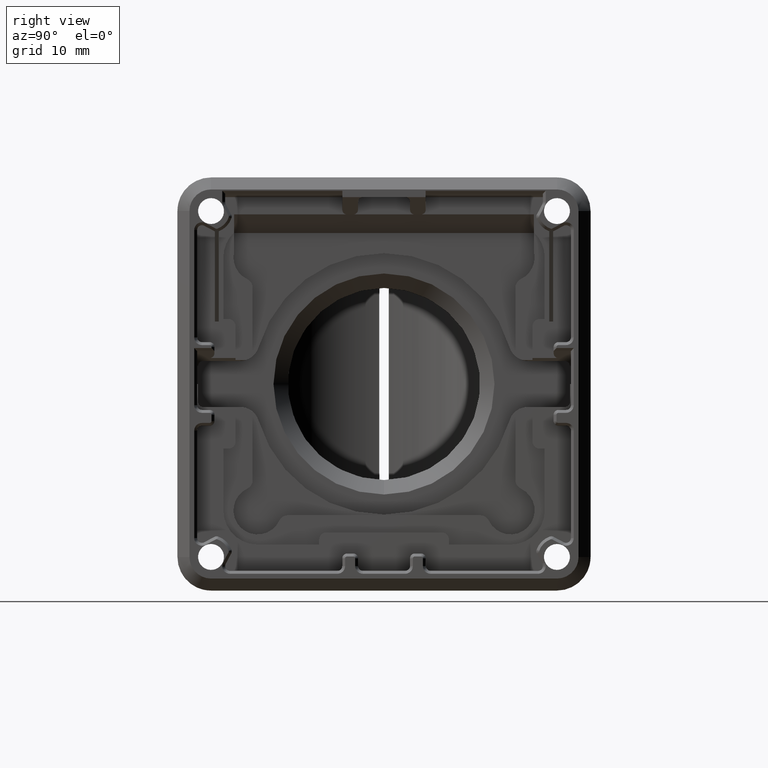
[diagram: clean part render]
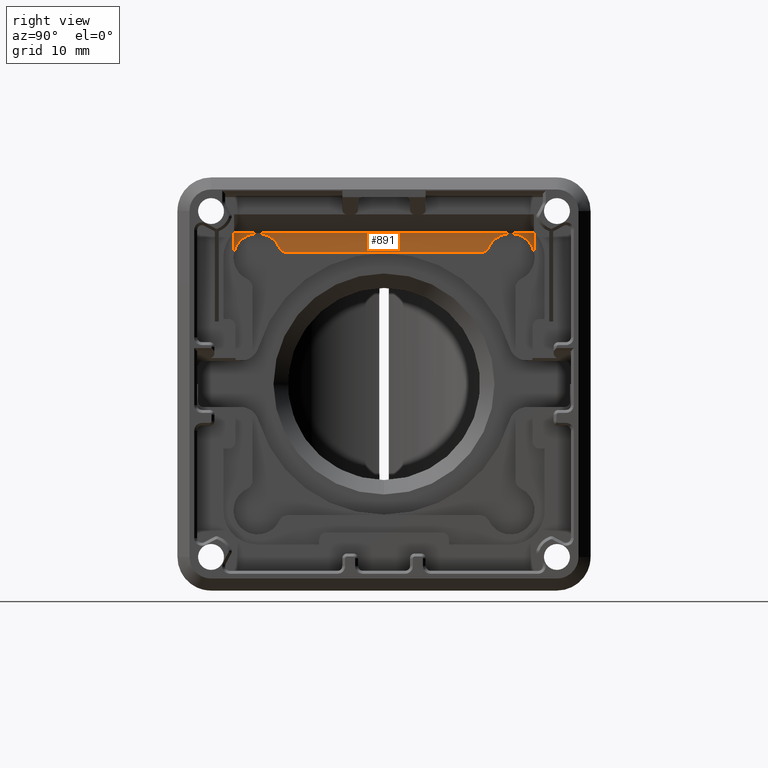
[diagram: same view with one face highlighted and labeled with its STEP entity id]
A machine part, right view. The second image highlights one B-rep face of the part: STEP entity #891.
In plain terms, the highlighted planar face has unit normal (1, 0, 0).
Its self-contained STEP definition (entity closure, byte-faithful):
#891=ADVANCED_FACE('',(#1320),#4439,.T.);
#1320=FACE_OUTER_BOUND('',#1811,.F.);
#1811=EDGE_LOOP('',(#4204,#4205,#4206,#4207,#4208,#4209,#4210,#4211));
#4204=ORIENTED_EDGE('',*,*,#7478,.T.);
#4205=ORIENTED_EDGE('',*,*,#6802,.F.);
#4206=ORIENTED_EDGE('',*,*,#6803,.T.);
#4207=ORIENTED_EDGE('',*,*,#6804,.T.);
#4208=ORIENTED_EDGE('',*,*,#6805,.T.);
#4209=ORIENTED_EDGE('',*,*,#6806,.F.);
#4210=ORIENTED_EDGE('',*,*,#7480,.F.);
#4211=ORIENTED_EDGE('',*,*,#7481,.T.);
#4439=PLANE('',#10609);
#6014=CIRCLE('',#9987,2.50000000000001);
#6015=CIRCLE('',#9988,0.99999999999999);
#6016=CIRCLE('',#9989,1.);
#6017=CIRCLE('',#9990,2.5);
#6802=EDGE_CURVE('',#9225,#9706,#6014,.T.);
#6803=EDGE_CURVE('',#9225,#9224,#6015,.T.);
#6804=EDGE_CURVE('',#9224,#9223,#7726,.T.);
#6805=EDGE_CURVE('',#9223,#9222,#6016,.T.);
#6806=EDGE_CURVE('',#9704,#9222,#6017,.T.);
#7478=EDGE_CURVE('',#8935,#9706,#8202,.T.);
#7480=EDGE_CURVE('',#8934,#9704,#8204,.T.);
#7481=EDGE_CURVE('',#8934,#8935,#8205,.T.);
#7726=LINE('',#15894,#8450);
#8202=LINE('',#16568,#8926);
#8204=LINE('',#16570,#8928);
#8205=LINE('',#16571,#8929);
#8450=VECTOR('',#11330,20.014075195959);
#8926=VECTOR('',#12202,1.96367658813035);
#8928=VECTOR('',#12204,1.9602306892521);
#8929=VECTOR('',#12205,31.2);
#8934=VERTEX_POINT('',#13074);
#8935=VERTEX_POINT('',#13075);
#9222=VERTEX_POINT('',#13362);
#9223=VERTEX_POINT('',#13363);
#9224=VERTEX_POINT('',#13364);
#9225=VERTEX_POINT('',#13365);
#9704=VERTEX_POINT('',#13844);
#9706=VERTEX_POINT('',#13846);
#9987=AXIS2_PLACEMENT_3D('',#15892,#11326,#11327);
#9988=AXIS2_PLACEMENT_3D('',#15893,#11328,#11329);
#9989=AXIS2_PLACEMENT_3D('',#15895,#11331,#11332);
#9990=AXIS2_PLACEMENT_3D('',#15896,#11333,#11334);
#10609=AXIS2_PLACEMENT_3D('',#16998,#13054,#13055);
#11326=DIRECTION('',(-1.,0.,0.));
#11327=DIRECTION('',(0.,-0.903515597400139,0.428555206775824));
#11328=DIRECTION('',(-1.,0.,0.));
#11329=DIRECTION('',(0.,0.90351559740013,-0.428555206775844));
#11330=DIRECTION('',(0.,-0.99999999880686,-4.88495653991172E-05));
#11331=DIRECTION('',(-1.,0.,0.));
#11332=DIRECTION('',(0.,4.88495649406667E-05,-0.99999999880686));
#11333=DIRECTION('',(-1.,0.,0.));
#11334=DIRECTION('',(0.,-0.972055655378278,0.234750511920861));
#12202=DIRECTION('',(0.,0.,-1.));
#12204=DIRECTION('',(0.,0.,-1.));
#12205=DIRECTION('',(0.,1.,0.));
#13054=DIRECTION('',(1.,0.,0.));
#13055=DIRECTION('',(0.,0.,-1.));
#13074=CARTESIAN_POINT('',(189.314999714696,-15.5999962829551,-112.784123593834));
#13075=CARTESIAN_POINT('',(189.314999714696,15.6000037170449,-112.784123593834));
#13362=CARTESIAN_POINT('',(189.314999714696,-10.9111066246971,-114.259761436293));
#13363=CARTESIAN_POINT('',(189.314999714696,-10.0075575672073,-114.831173784462));
#13364=CARTESIAN_POINT('',(189.314999714696,10.0065176048719,-114.830196105588));
#13365=CARTESIAN_POINT('',(189.314999714696,10.909984352706,-114.258751313557));
#13844=CARTESIAN_POINT('',(189.314999714696,-15.5999962829551,-114.744354283086));
#13846=CARTESIAN_POINT('',(189.314999714696,15.6000037170449,-114.747800181965));
#15892=CARTESIAN_POINT('',(189.314999714696,13.1687733462064,-115.330139330496));
#15893=CARTESIAN_POINT('',(189.314999714696,10.0064687553059,-113.830196106781));
#15894=CARTESIAN_POINT('',(189.314999714696,10.006517604872,-114.830196105587));
#15895=CARTESIAN_POINT('',(189.314999714696,-10.0076064167721,-113.831173785655));
#15896=CARTESIAN_POINT('',(189.314999714696,-13.1698571445094,-115.331230562889));
#16568=CARTESIAN_POINT('',(189.314999714696,15.6000037170449,-112.784123593834));
#16570=CARTESIAN_POINT('',(189.314999714696,-15.5999962829551,-112.784123593834));
#16571=CARTESIAN_POINT('',(189.314999714696,-15.5999962829551,-112.784123593834));
#16998=CARTESIAN_POINT('',(189.314999714696,15.9120037170449,-112.472123593834));